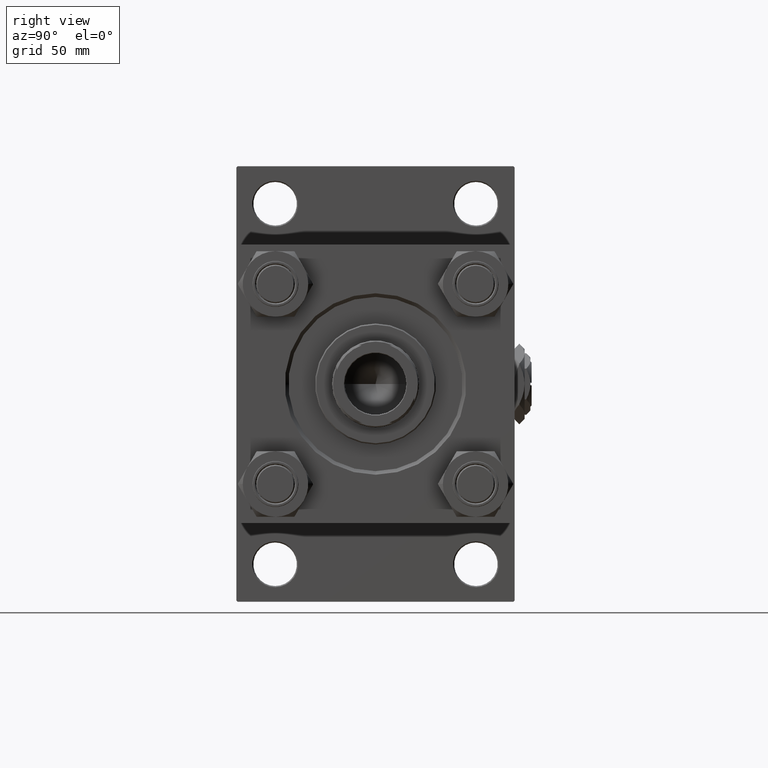
[diagram: clean part render]
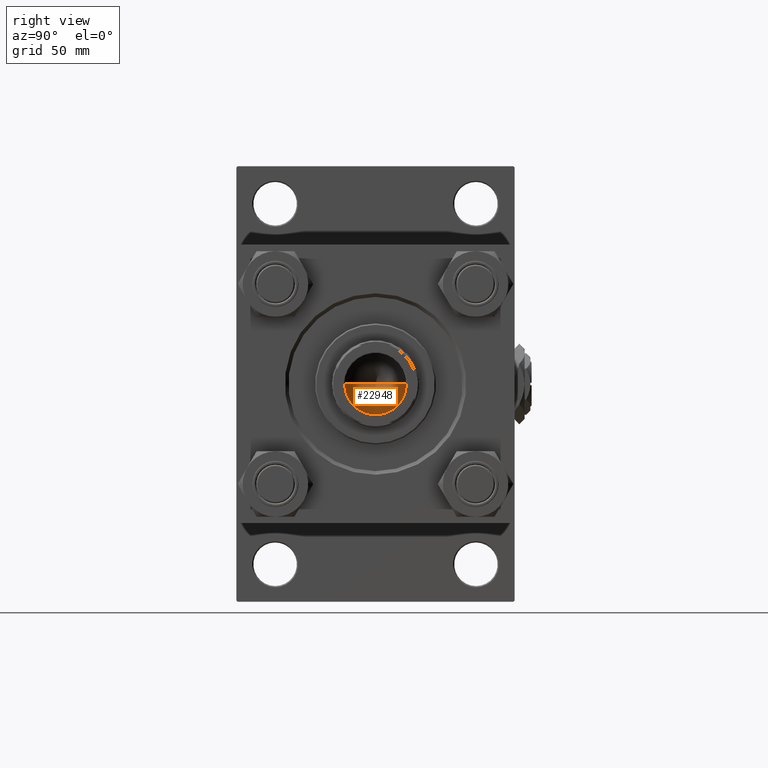
[diagram: same view with one face highlighted and labeled with its STEP entity id]
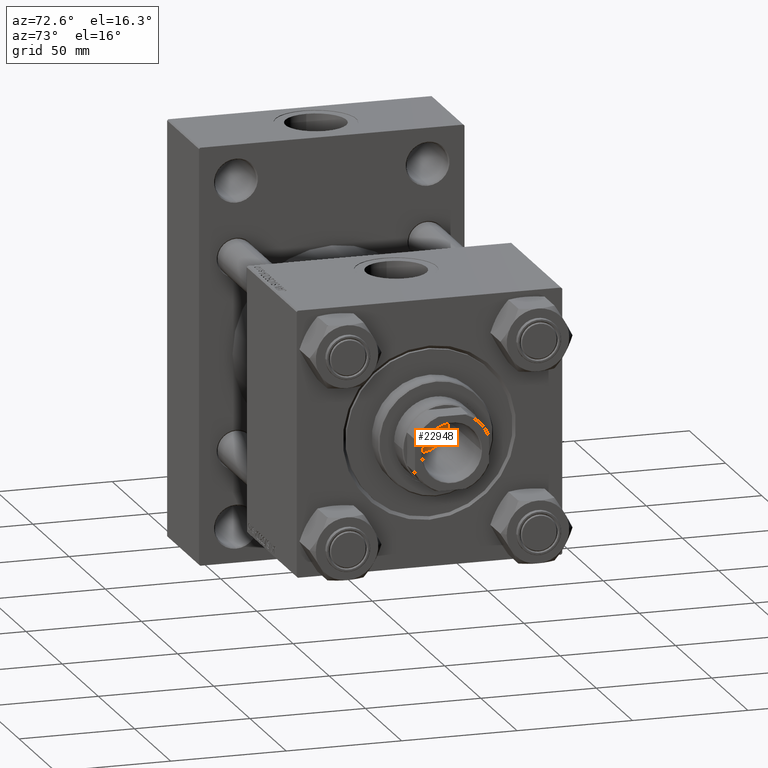
[diagram: same view with one face highlighted and labeled with its STEP entity id]
A machine part, right view. The second image highlights one B-rep face of the part: STEP entity #22948.
A second angle (auxiliary view) of the same face is appended — the face is thin or edge-on in the first view.
In plain terms, the highlighted conical surface has half-angle 59 deg.
Its self-contained STEP definition (entity closure, byte-faithful):
#2298 = AXIS2_PLACEMENT_3D ( 'NONE', #7742, #11216, #23944 ) ;
#7742 = CARTESIAN_POINT ( 'NONE',  ( 0.000000000000000000, 0.000000000000000000, 121.0000000000000142 ) ) ;
#7823 = EDGE_CURVE ( 'NONE', #28774, #26400, #51483, .T. ) ;
#9819 = EDGE_LOOP ( 'NONE', ( #35960, #51159, #41301 ) ) ;
#10920 = EDGE_CURVE ( 'NONE', #40593, #26400, #21869, .T. ) ;
#11216 = DIRECTION ( 'NONE',  ( -0.000000000000000000, -0.000000000000000000, 1.000000000000000000 ) ) ;
#12970 = DIRECTION ( 'NONE',  ( -0.000000000000000000, -0.000000000000000000, 1.000000000000000000 ) ) ;
#13431 = VECTOR ( 'NONE', #46038, 1000.000000000000000 ) ;
#13479 = CARTESIAN_POINT ( 'NONE',  ( 12.74999999999998934, 0.000000000000000000, 121.0000000000000142 ) ) ;
#14524 = EDGE_CURVE ( 'NONE', #40593, #28774, #22497, .T. ) ;
#15166 = CARTESIAN_POINT ( 'NONE',  ( -1.410643066818227497E-14, 0.000000000000000000, 113.3390271073986071 ) ) ;
#17890 = CONICAL_SURFACE ( 'NONE', #45021, 12.74999999999998934, 1.029744258676653423 ) ;
#18184 = CARTESIAN_POINT ( 'NONE',  ( 12.74999999999998934, 0.000000000000000000, 121.0000000000000142 ) ) ;
#18519 = DIRECTION ( 'NONE',  ( 0.8571673007021117785, 0.000000000000000000, 0.5150380749100550437 ) ) ;
#20664 = CARTESIAN_POINT ( 'NONE',  ( 0.000000000000000000, 0.000000000000000000, 121.0000000000000142 ) ) ;
#21869 = LINE ( 'NONE', #41266, #13431 ) ;
#22497 = LINE ( 'NONE', #13479, #36514 ) ;
#22948 = ADVANCED_FACE ( 'NONE', ( #44317 ), #17890, .F. ) ;
#23944 = DIRECTION ( 'NONE',  ( 1.000000000000000000, 0.000000000000000000, 0.000000000000000000 ) ) ;
#26400 = VERTEX_POINT ( 'NONE', #44851 ) ;
#28774 = VERTEX_POINT ( 'NONE', #18184 ) ;
#28898 = DIRECTION ( 'NONE',  ( 1.000000000000000000, 0.000000000000000000, 0.000000000000000000 ) ) ;
#35960 = ORIENTED_EDGE ( 'NONE', *, *, #10920, .F. ) ;
#36514 = VECTOR ( 'NONE', #18519, 1000.000000000000000 ) ;
#40593 = VERTEX_POINT ( 'NONE', #15166 ) ;
#41266 = CARTESIAN_POINT ( 'NONE',  ( -12.74999999999998934, 1.561424668912873928E-15, 121.0000000000000142 ) ) ;
#41301 = ORIENTED_EDGE ( 'NONE', *, *, #7823, .T. ) ;
#44317 = FACE_OUTER_BOUND ( 'NONE', #9819, .T. ) ;
#44851 = CARTESIAN_POINT ( 'NONE',  ( -12.74999999999998934, 1.561424668912873928E-15, 121.0000000000000142 ) ) ;
#45021 = AXIS2_PLACEMENT_3D ( 'NONE', #20664, #12970, #28898 ) ;
#46038 = DIRECTION ( 'NONE',  ( -0.8571673007021117785, 1.049727191138617956E-16, 0.5150380749100550437 ) ) ;
#51159 = ORIENTED_EDGE ( 'NONE', *, *, #14524, .T. ) ;
#51483 = CIRCLE ( 'NONE', #2298, 12.74999999999998934 ) ;